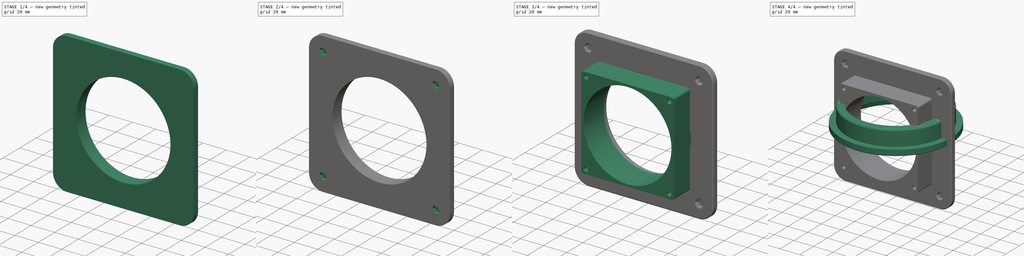
[diagram: build sequence overview — one tinted view per stage of 4, left to right]
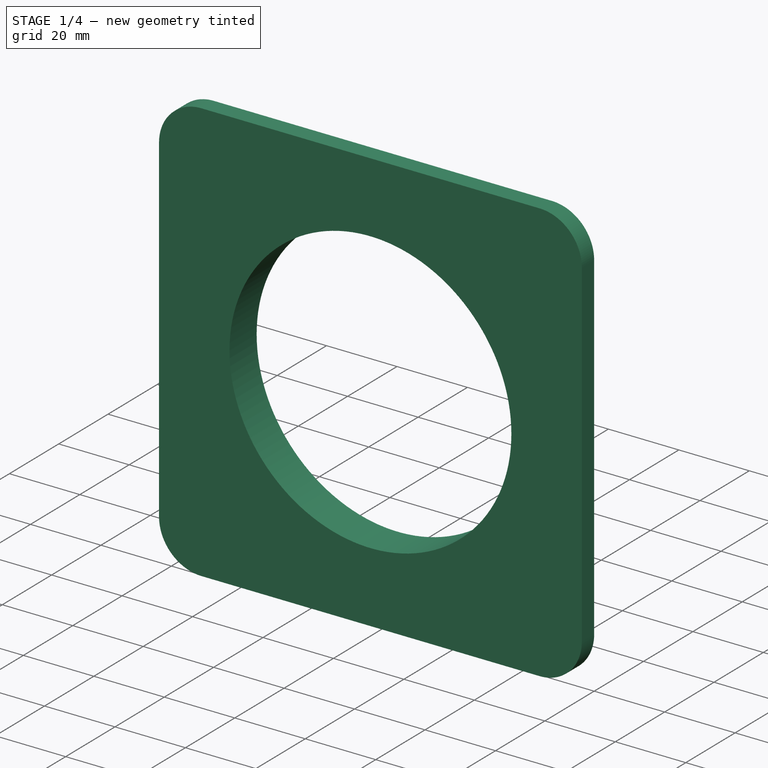
[diagram: stage 1 of 4 — iso view after this stage's code; geometry added in this stage tinted green]
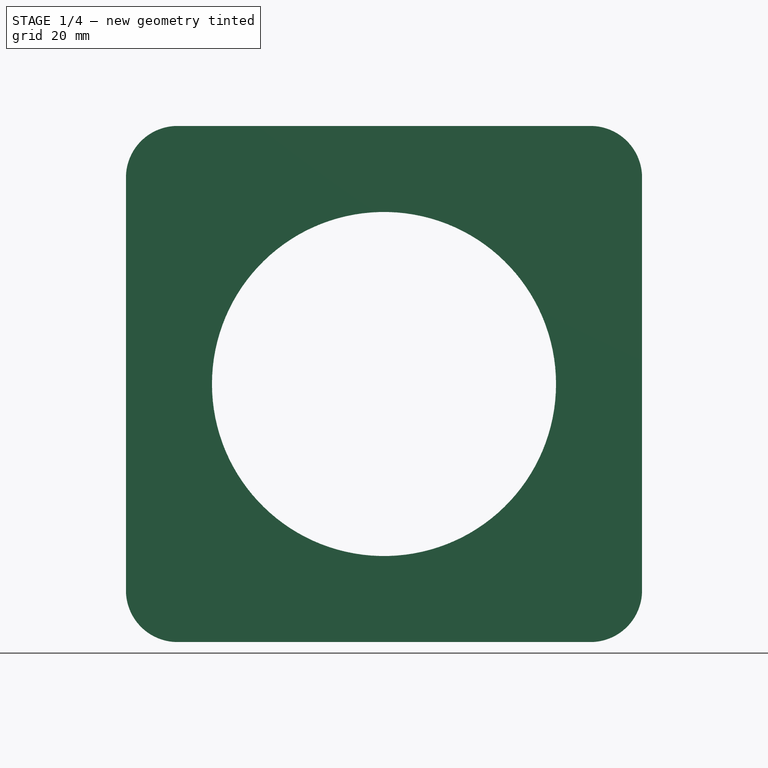
[diagram: stage 1 of 4 — front view after this stage's code; geometry added in this stage tinted green]
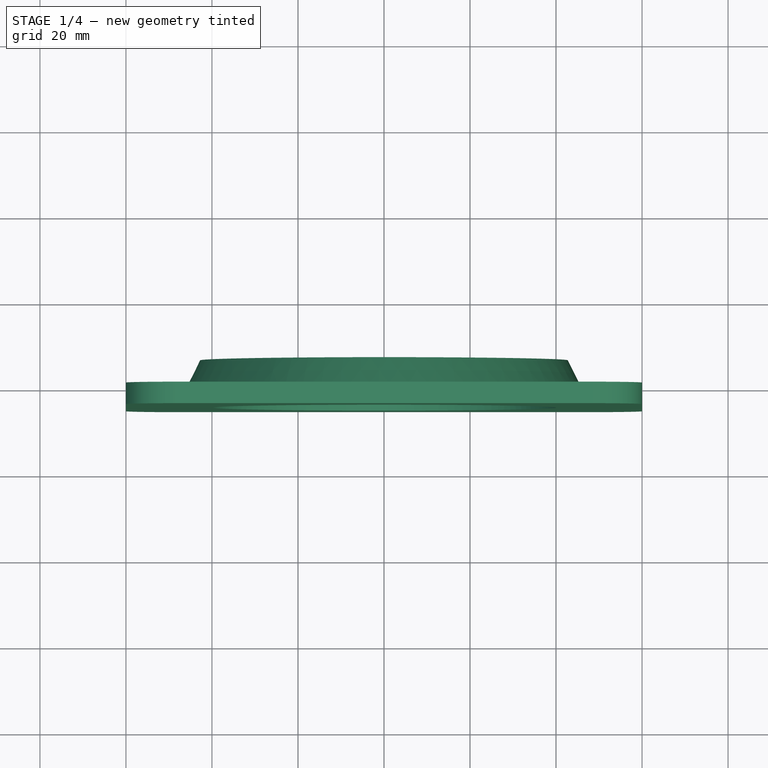
[diagram: stage 1 of 4 — top view after this stage's code; geometry added in this stage tinted green]
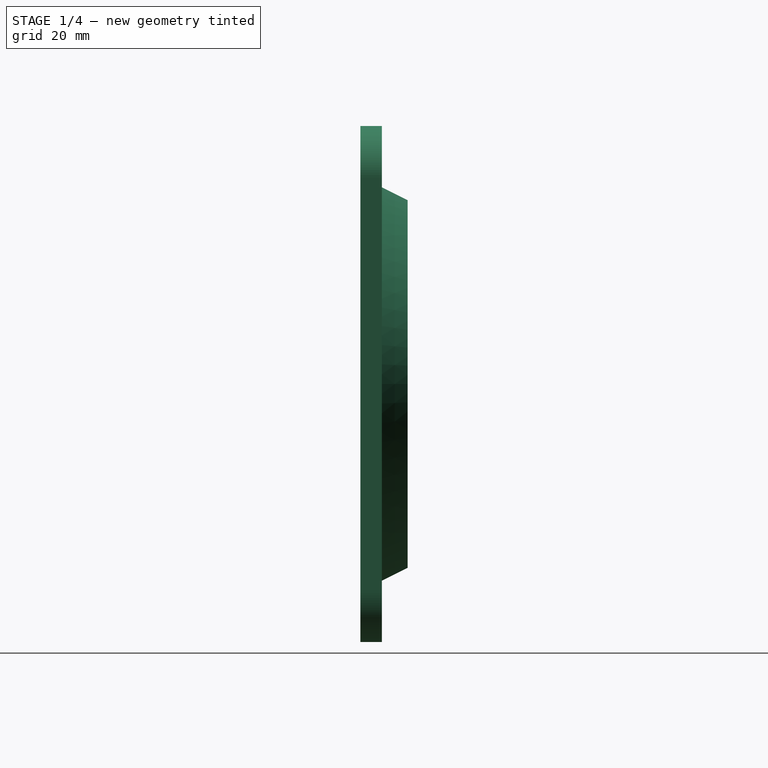
[diagram: stage 1 of 4 — right view after this stage's code; geometry added in this stage tinted green]
FCSTD DOCUMENT  (FreeCAD 1.0R39109 (Git))
Label: air-exhaust
License: All rights reserved
LicenseURL: http://en.wikipedia.org/wiki/All_rights_reserved
objects: Sketcher::SketchObject×10, PartDesign::Pocket×6, PartDesign::Body×3, PartDesign::Revolution×2, PartDesign::PolarPattern×2, PartDesign::Chamfer×2, PartDesign::Pad×2, App::Part×1
note: 63 computed .brp shape members not serialized (recipe doc carries the construction recipe); baked Part::Feature solids carry a one-line shape summary decoded from their .brp

FEATURE [PartDesign::Body] Body  label="air-connector-hose"
  AllowCompound = false
  Group = -> [Sketch,Revolution,Sketch001,Pocket,PolarPattern,Chamfer]
  Origin = -> Origin
  Placement = pos=(0,0,0) rot=(1,0,0;1.5708rad)
  Tip = -> Chamfer
FEATURE [Sketcher::SketchObject] Sketch492
  ArcFitTolerance = 1e-06
  AttachmentSupport = -> [XZ_Plane317]
  FullyConstrained = true
  MakeInternals = false
  MapMode = 5
  Placement = pos=(0,0,0) rot=(1,0,0;1.5708rad)
  sketch-geometry (13):
    g0: LineSegment StartX=-60 StartY=48 StartZ=0 EndX=-60 EndY=-48 EndZ=0
    g1: LineSegment StartX=-48 StartY=-60 StartZ=0 EndX=48 EndY=-60 EndZ=0
    g2: LineSegment StartX=60 StartY=-48 StartZ=0 EndX=60 EndY=48 EndZ=0
    g3: LineSegment StartX=48 StartY=60 StartZ=0 EndX=-48 EndY=60 EndZ=0
    g4: ArcOfCircle CenterX=-48 CenterY=48 CenterZ=0 NormalX=0 NormalY=0 NormalZ=1 AngleXU=0 Radius=12 StartAngle=1.5708 EndAngle=3.14159
    g5: GeomPoint [constr] X=-60 Y=60 Z=0
    g6: ArcOfCircle CenterX=48 CenterY=48 CenterZ=0 NormalX=0 NormalY=0 NormalZ=1 AngleXU=0 Radius=12 StartAngle=0 EndAngle=1.5708
    g7: GeomPoint [constr] X=60 Y=60 Z=0
    g8: ArcOfCircle CenterX=48 CenterY=-48 CenterZ=0 NormalX=0 NormalY=0 NormalZ=1 AngleXU=0 Radius=12 StartAngle=4.71239 EndAngle=6.28319
    g9: GeomPoint [constr] X=60 Y=-60 Z=0
    g10: ArcOfCircle CenterX=-48 CenterY=-48 CenterZ=0 NormalX=0 NormalY=0 NormalZ=1 AngleXU=0 Radius=12 StartAngle=3.14159 EndAngle=4.71239
    g11: GeomPoint [constr] X=-60 Y=-60 Z=0
    g12: Circle CenterX=0 CenterY=0 CenterZ=0 NormalX=0 NormalY=0 NormalZ=1 AngleXU=0 Radius=40
  constraints (29):
    c: Vertical(g0)
    c: Vertical(g2)
    c: Horizontal(g1)
    c: Horizontal(g3)
    c: PointOnObject(g5,g0)
    c: PointOnObject(g5,g3)
    c: Tangent(g0,g4) = -1.5708
    c: Tangent(g3,g4) = -1.5708
    c: PointOnObject(g7,g2)
    c: PointOnObject(g7,g3)
    c: Tangent(g2,g6) = -1.5708
    c: Tangent(g3,g6) = -1.5708
    c: PointOnObject(g9,g1)
    c: PointOnObject(g9,g2)
    c: Tangent(g1,g8) = -1.5708
    c: Tangent(g2,g8) = -1.5708
    c: PointOnObject(g11,g0)
    c: PointOnObject(g11,g1)
    c: Tangent(g0,g10) = -1.5708
    c: Tangent(g1,g10) = -1.5708
    c: Symmetric(g4,g8,g-1)
    c: Equal(g2,g3)
    c: Equal(g4,g6)
    c: Equal(g6,g8)
    c: Equal(g8,g10)
    c: DistanceX(g6) = 48
    c: Coincident(g12,g-1)
    c: Diameter(g12) = 80
    c: Radius(g6) = 12
FEATURE [PartDesign::Pad] Pad111
  Direction = (0,-1,2e-16)
  Length = 5
  Length2 = 0
  Placement = pos=(0,0,0) rot=(1,0,0;1.5708rad)
  Profile = -> Sketch492
  ReferenceAxis = -> Sketch492 [N_Axis]
  Suppressed = false
  Type = 0
FEATURE [PartDesign::Body] Body167  label="exhaust-fan"
  AllowCompound = false
  Group = -> [Sketch498,Pad113]
  Origin = -> Origin319
  Placement = pos=(0,5,0) rot=(0,0,1;3.14159rad)
  Tip = -> Pad113
FEATURE [Sketcher::SketchObject] Sketch503
  ArcFitTolerance = 1e-06
  AttachmentSupport = -> [XY_Plane317]
  FullyConstrained = true
  MakeInternals = false
  MapMode = 5
  sketch-geometry (4):
    g0: LineSegment StartX=40 StartY=0 StartZ=0 EndX=40 EndY=6 EndZ=0
    g1: LineSegment StartX=42.75 StartY=6 StartZ=0 EndX=45.75 EndY=0 EndZ=0
    g2: LineSegment StartX=45.75 StartY=0 StartZ=0 EndX=40 EndY=0 EndZ=0
    g3: LineSegment StartX=40 StartY=6 StartZ=0 EndX=42.75 EndY=6 EndZ=0
  constraints (12):
    c: Vertical(g0)
    c: Coincident(g1,g2)
    c: Coincident(g2,g0)
    c: Horizontal(g2)
    c: DistanceX(g0) = 40
    c: DistanceY(g1,g1) = 6
    c: DistanceX(g1,g1) = 3
    c: DistanceY(g0,g0) = 6
    c: PointOnObject(g0,g-1)
    c: DistanceX(g0,g1) = 2.75
    c: Coincident(g3,g0)
    c: Coincident(g3,g1)
FEATURE [Sketcher::SketchObject] Sketch504
  ArcFitTolerance = 1e-06
  AttachmentSupport = -> [XZ_Plane317]
  FullyConstrained = true
  MakeInternals = false
  MapMode = 5
  Placement = pos=(0,0,0) rot=(1,0,0;1.5708rad)
  sketch-geometry (6):
    g0: Circle CenterX=-48 CenterY=48 CenterZ=0 NormalX=0 NormalY=0 NormalZ=1 AngleXU=0 Radius=1.75
    g1: Circle CenterX=48 CenterY=48 CenterZ=0 NormalX=0 NormalY=0 NormalZ=1 AngleXU=0 Radius=1.75
    g2: Circle CenterX=48 CenterY=-48 CenterZ=0 NormalX=0 NormalY=0 NormalZ=1 AngleXU=0 Radius=1.75
    g3: Circle CenterX=-48 CenterY=-48 CenterZ=0 NormalX=0 NormalY=0 NormalZ=1 AngleXU=0 Radius=1.75
    g4: LineSegment [constr] StartX=-48 StartY=48 StartZ=0 EndX=48 EndY=48 EndZ=0
    g5: LineSegment [constr] StartX=-48 StartY=48 StartZ=0 EndX=-48 EndY=-48 EndZ=0
  constraints (15):
    c: Equal(g0,g1)
    c: Equal(g0,g2)
    c: Equal(g0,g3)
    c: Horizontal(g0,g1)
    c: Vertical(g1,g2)
    c: Horizontal(g2,g3)
    c: Vertical(g3,g0)
    c: Symmetric(g0,g2,g-1)
    c: Coincident(g4,g0)
    c: Coincident(g4,g1)
    c: Coincident(g5,g0)
    c: Coincident(g5,g3)
    c: Equal(g5,g4)
    c: DistanceX(g4,g4) = 96
    c: Diameter(g0) = 3.5
FEATURE [Sketcher::SketchObject] Sketch505
  ArcFitTolerance = 1e-06
  AttachmentOffset = pos=(0,0,2) rot=(0,0,1;0rad)
  AttachmentSupport = -> [XZ_Plane317]
  FullyConstrained = true
  MakeInternals = false
  MapMode = 5
  Placement = pos=(0,-2,4e-16) rot=(1,0,0;1.5708rad)
  sketch-geometry (30):
    g0: LineSegment StartX=-46.4123 StartY=45.25 StartZ=0 EndX=-44.8246 EndY=48 EndZ=0
    g1: LineSegment StartX=-44.8246 StartY=48 StartZ=0 EndX=-46.4123 EndY=50.75 EndZ=0
    g2: LineSegment StartX=-46.4123 StartY=50.75 StartZ=0 EndX=-49.5877 EndY=50.75 EndZ=0
    g3: LineSegment StartX=-49.5877 StartY=50.75 StartZ=0 EndX=-51.1754 EndY=48 EndZ=0
    g4: LineSegment StartX=-51.1754 StartY=48 StartZ=0 EndX=-49.5877 EndY=45.25 EndZ=0
    g5: LineSegment StartX=-49.5877 StartY=45.25 StartZ=0 EndX=-46.4123 EndY=45.25 EndZ=0
    g6: Circle [constr] CenterX=-48 CenterY=48 CenterZ=0 NormalX=0 NormalY=0 NormalZ=1 AngleXU=0 Radius=3.17543
    g7: LineSegment StartX=49.5877 StartY=45.25 StartZ=0 EndX=51.1754 EndY=48 EndZ=0
    g8: LineSegment StartX=51.1754 StartY=48 StartZ=0 EndX=49.5877 EndY=50.75 EndZ=0
    g9: LineSegment StartX=49.5877 StartY=50.75 StartZ=0 EndX=46.4123 EndY=50.75 EndZ=0
    g10: LineSegment StartX=46.4123 StartY=50.75 StartZ=0 EndX=44.8246 EndY=48 EndZ=0
    g11: LineSegment StartX=44.8246 StartY=48 StartZ=0 EndX=46.4123 EndY=45.25 EndZ=0
    g12: LineSegment StartX=46.4123 StartY=45.25 StartZ=0 EndX=49.5877 EndY=45.25 EndZ=0
    g13: Circle [constr] CenterX=48 CenterY=48 CenterZ=0 NormalX=0 NormalY=0 NormalZ=1 AngleXU=0 Radius=3.17543
    g14: LineSegment StartX=49.5877 StartY=-50.75 StartZ=0 EndX=51.1754 EndY=-48 EndZ=0
    g15: LineSegment StartX=51.1754 StartY=-48 StartZ=0 EndX=49.5877 EndY=-45.25 EndZ=0
    g16: LineSegment StartX=49.5877 StartY=-45.25 StartZ=0 EndX=46.4123 EndY=-45.25 EndZ=0
    g17: LineSegment StartX=46.4123 StartY=-45.25 StartZ=0 EndX=44.8246 EndY=-48 EndZ=0
    g18: LineSegment StartX=44.8246 StartY=-48 StartZ=0 EndX=46.4123 EndY=-50.75 EndZ=0
    g19: LineSegment StartX=46.4123 StartY=-50.75 StartZ=0 EndX=49.5877 EndY=-50.75 EndZ=0
    g20: Circle [constr] CenterX=48 CenterY=-48 CenterZ=0 NormalX=0 NormalY=0 NormalZ=1 AngleXU=0 Radius=3.17543
    g21: LineSegment StartX=-44.8246 StartY=-48 StartZ=0 EndX=-46.4123 EndY=-45.25 EndZ=0
    g22: LineSegment StartX=-46.4123 StartY=-45.25 StartZ=0 EndX=-49.5877 EndY=-45.25 EndZ=0
    g23: LineSegment StartX=-49.5877 StartY=-45.25 StartZ=0 EndX=-51.1754 EndY=-48 EndZ=0
    g24: LineSegment StartX=-51.1754 StartY=-48 StartZ=0 EndX=-49.5877 EndY=-50.75 EndZ=0
    g25: LineSegment StartX=-49.5877 StartY=-50.75 StartZ=0 EndX=-46.4123 EndY=-50.75 EndZ=0
    g26: LineSegment StartX=-46.4123 StartY=-50.75 StartZ=0 EndX=-44.8246 EndY=-48 EndZ=0
    g27: Circle [constr] CenterX=-48 CenterY=-48 CenterZ=0 NormalX=0 NormalY=0 NormalZ=1 AngleXU=0 Radius=3.17543
    g28: LineSegment [constr] StartX=-48 StartY=48 StartZ=0 EndX=48 EndY=48 EndZ=0
    g29: LineSegment [constr] StartX=-48 StartY=-48 StartZ=0 EndX=-48 EndY=48 EndZ=0
  constraints (71):
    c: Coincident(g0,g1)
    c: Coincident(g1,g2)
    c: Coincident(g2,g3)
    c: Coincident(g3,g4)
    c: Coincident(g4,g5)
    c: Coincident(g5,g0)
    c: Equal(g0, g1-g5) x5
    c: PointOnObject(g0,g6)
    c: PointOnObject(g1,g6)
    c: PointOnObject(g2,g6)
    c: PointOnObject(g3,g6)
    c: PointOnObject(g4,g6)
    c: PointOnObject(g5,g6)
    c: Coincident(g7,g8)
    c: Coincident(g8,g9)
    c: Coincident(g9,g10)
    c: Coincident(g10,g11)
    c: Coincident(g11,g12)
    c: Coincident(g12,g7)
    c: Equal(g7, g8-g12) x5
    c: PointOnObject(g7,g13)
    c: PointOnObject(g8,g13)
    c: PointOnObject(g9,g13)
    c: PointOnObject(g10,g13)
    c: PointOnObject(g11,g13)
    c: PointOnObject(g12,g13)
    c: Coincident(g14,g15)
    c: Coincident(g15,g16)
    c: Coincident(g16,g17)
    c: Coincident(g17,g18)
    c: Coincident(g18,g19)
    c: Coincident(g19,g14)
    c: Equal(g14, g15-g19) x5
    c: PointOnObject(g14,g20)
    c: PointOnObject(g15,g20)
    c: PointOnObject(g16,g20)
    c: PointOnObject(g17,g20)
    c: PointOnObject(g18,g20)
    c: PointOnObject(g19,g20)
    c: Coincident(g21,g22)
    c: Coincident(g22,g23)
    c: Coincident(g23,g24)
    c: Coincident(g24,g25)
    c: Coincident(g25,g26)
    c: Coincident(g26,g21)
    c: Equal(g21, g22-g26) x5
    c: PointOnObject(g21,g27)
    c: PointOnObject(g22,g27)
    c: PointOnObject(g23,g27)
    c: PointOnObject(g24,g27)
    c: PointOnObject(g25,g27)
    c: PointOnObject(g26,g27)
    c: Equal(g6,g13)
    c: Equal(g13,g20)
    c: Equal(g20,g27)
    c: Symmetric(g27,g13,g-1)
    c: Horizontal(g27,g20)
    c: Vertical(g20,g13)
    c: Horizontal(g13,g6)
    c: Vertical(g6,g27)
    c: Horizontal(g22)
    c: Horizontal(g16)
    c: Horizontal(g9)
    c: Horizontal(g2)
    c: Coincident(g28,g6)
    c: Coincident(g28,g13)
    c: Coincident(g29,g27)
    c: Coincident(g29,g6)
    c: Equal(g29,g28)
    c: DistanceX(g28,g28) = 96
    c: DistanceY(g0,g1) = 5.5
FEATURE [Sketcher::SketchObject] Sketch502
  ArcFitTolerance = 1e-06
  AttachmentSupport = -> [XZ_Plane317]
  FullyConstrained = true
  MakeInternals = false
  MapMode = 5
  Placement = pos=(0,0,0) rot=(1,0,0;1.5708rad)
  sketch-geometry (3):
    g0: GeomPoint X=46 Y=0 Z=0
    g1: GeomPoint X=56 Y=0 Z=0
    g2: Circle CenterX=51 CenterY=0 CenterZ=0 NormalX=0 NormalY=0 NormalZ=1 AngleXU=0 Radius=3
  constraints (6):
    c: PointOnObject(g0,g-1)
    c: DistanceX(g0) = 46
    c: PointOnObject(g1,g-1)
    c: DistanceX(g1) = 56
    c: Symmetric(g1,g0,g2)
    c: Diameter(g2) = 6
FEATURE [PartDesign::Pocket] Pocket352
  BaseFeature = -> Pad111
  Direction = (0,1,-2e-16)
  Length = 3.5
  Length2 = 5
  Placement = pos=(0,0,0) rot=(1,0,0;1.5708rad)
  Profile = -> Sketch502
  ReferenceAxis = -> Sketch502 [N_Axis]
  Reversed = true
  Suppressed = false
  Type = 0
FEATURE [PartDesign::PolarPattern] PolarPattern007
  Angle = 360
  Axis = -> Y_Axis318
  BaseFeature = -> Pocket352
  Mode = 0
  Occurrences = 6
  Offset = 120
  Originals = -> [Pocket352]
  Placement = pos=(0,0,0) rot=(1,0,0;1.5708rad)
  Suppressed = false
  TransformMode = 0
FEATURE [PartDesign::Revolution] Revolution001
  Angle = 360
  Angle2 = 60
  Axis = (0,1,0)
  Base = (0,0,0)
  BaseFeature = -> PolarPattern007
  Placement = pos=(0,0,0) rot=(1,0,0;1.5708rad)
  Profile = -> Sketch503
  ReferenceAxis = -> Sketch503 [V_Axis]
  Refine = true
  Reversed = true
  Suppressed = false
  Type = 0
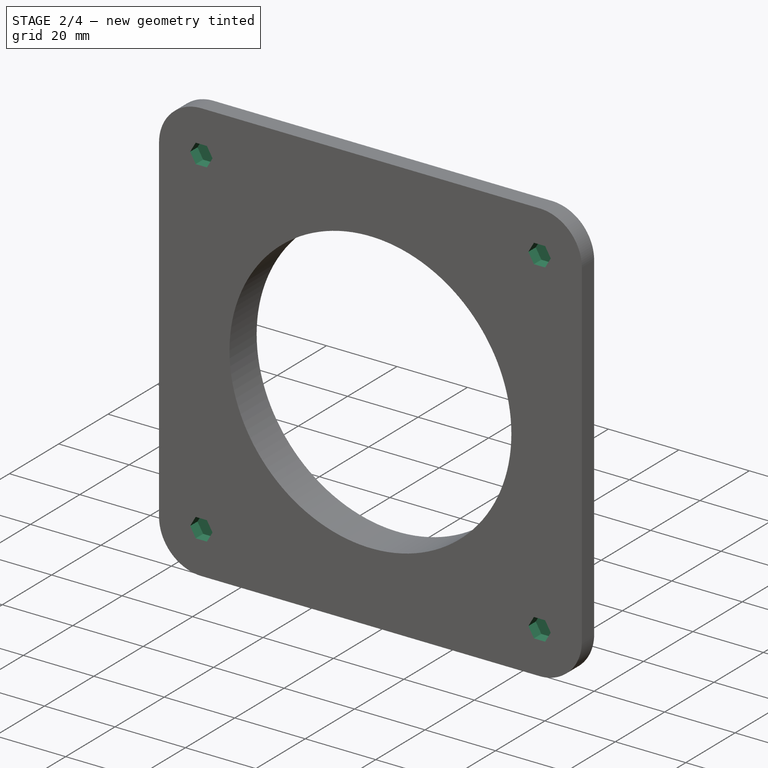
[diagram: stage 2 of 4 — iso view after this stage's code; geometry added in this stage tinted green]
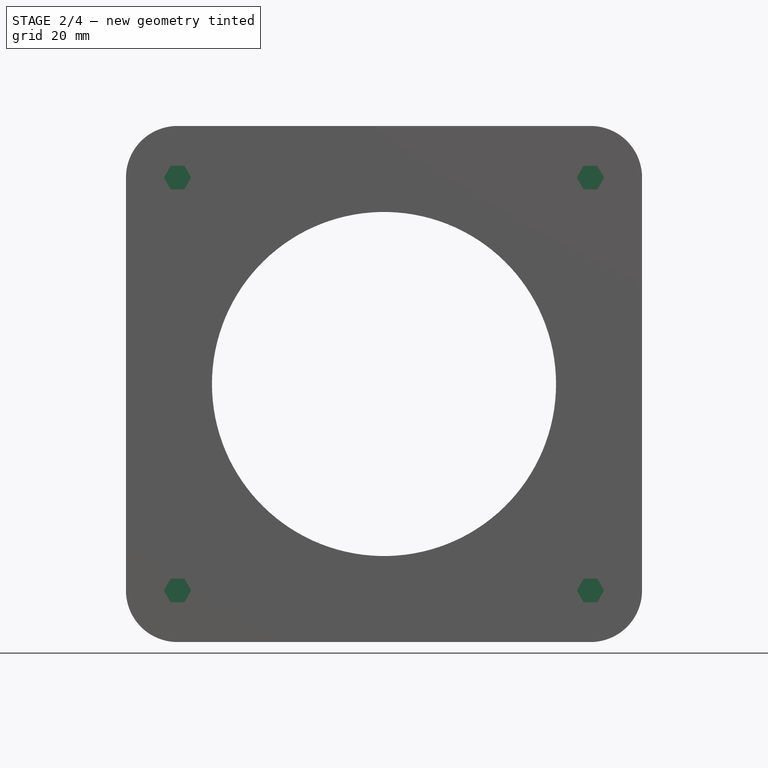
[diagram: stage 2 of 4 — front view after this stage's code; geometry added in this stage tinted green]
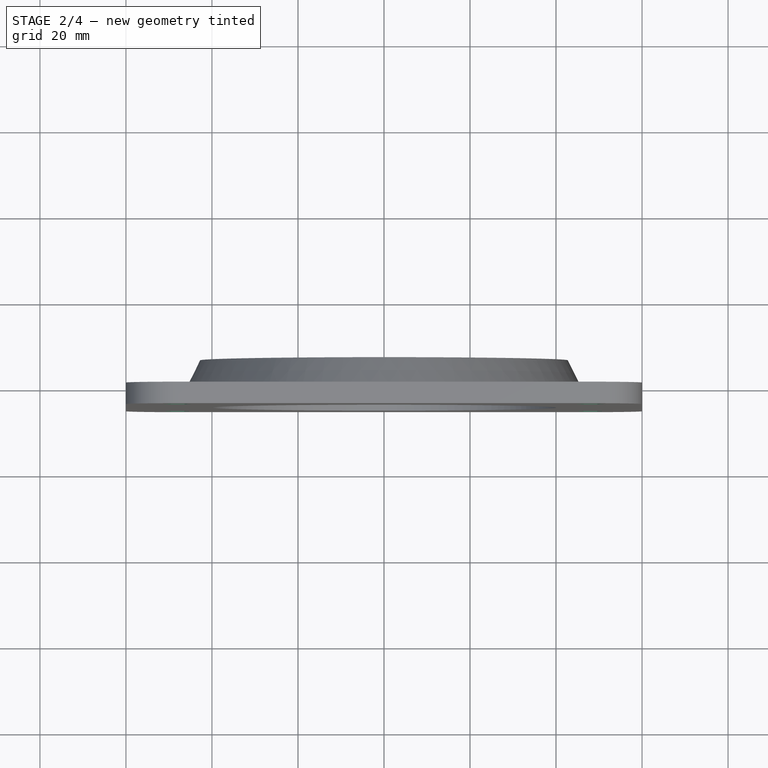
[diagram: stage 2 of 4 — top view after this stage's code; geometry added in this stage tinted green]
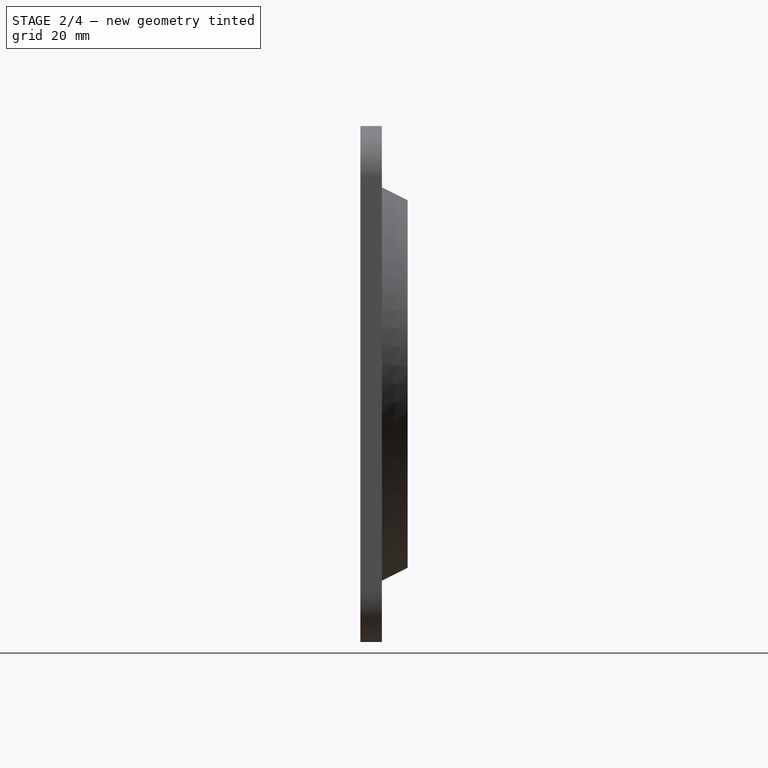
[diagram: stage 2 of 4 — right view after this stage's code; geometry added in this stage tinted green]
FEATURE [PartDesign::Pocket] Pocket353
  BaseFeature = -> Revolution001
  Direction = (0,1,-2e-16)
  Length = 1.7
  Length2 = 5
  Placement = pos=(0,0,0) rot=(1,0,0;1.5708rad)
  Profile = -> Sketch504
  ReferenceAxis = -> Sketch504 [N_Axis]
  Refine = true
  Reversed = true
  Suppressed = false
  Type = 0
FEATURE [PartDesign::Pocket] Pocket354
  BaseFeature = -> Pocket353
  Direction = (0,1,-2e-16)
  Length = 5
  Length2 = 5
  Placement = pos=(0,0,0) rot=(1,0,0;1.5708rad)
  Profile = -> Sketch505
  ReferenceAxis = -> Sketch505 [N_Axis]
  Refine = true
  Reversed = true
  Suppressed = false
  Type = 1
FEATURE [Sketcher::SketchObject] Sketch506
  ArcFitTolerance = 1e-06
  AttachmentSupport = -> [XZ_Plane317]
  FullyConstrained = true
  MakeInternals = false
  MapMode = 5
  Placement = pos=(0,0,0) rot=(1,0,0;1.5708rad)
  sketch-geometry (6):
    g0: Circle CenterX=-36 CenterY=36 CenterZ=0 NormalX=0 NormalY=0 NormalZ=1 AngleXU=0 Radius=1.75
    g1: Circle CenterX=36 CenterY=36 CenterZ=0 NormalX=0 NormalY=0 NormalZ=1 AngleXU=0 Radius=1.75
    g2: Circle CenterX=36 CenterY=-36 CenterZ=0 NormalX=0 NormalY=0 NormalZ=1 AngleXU=0 Radius=1.75
    g3: Circle CenterX=-36 CenterY=-36 CenterZ=0 NormalX=0 NormalY=0 NormalZ=1 AngleXU=0 Radius=1.75
    g4: LineSegment [constr] StartX=-36 StartY=36 StartZ=0 EndX=36 EndY=36 EndZ=0
    g5: LineSegment [constr] StartX=-36 StartY=36 StartZ=0 EndX=-36 EndY=-36 EndZ=0
  constraints (15):
    c: Equal(g0,g1)
    c: Equal(g0,g2)
    c: Equal(g0,g3)
    c: Horizontal(g0,g1)
    c: Vertical(g1,g2)
    c: Horizontal(g2,g3)
    c: Vertical(g3,g0)
    c: Symmetric(g0,g2,g-1)
    c: Coincident(g4,g0)
    c: Coincident(g4,g1)
    c: Coincident(g5,g0)
    c: Coincident(g5,g3)
    c: Equal(g5,g4)
    c: DistanceX(g4,g4) = 72
    c: Diameter(g0) = 3.5
FEATURE [Sketcher::SketchObject] Sketch507
  ArcFitTolerance = 1e-06
  AttachmentOffset = pos=(0,0,3) rot=(0,0,1;0rad)
  AttachmentSupport = -> [XZ_Plane317]
  FullyConstrained = true
  MakeInternals = false
  MapMode = 5
  Placement = pos=(0,-3,7e-16) rot=(1,0,0;1.5708rad)
  sketch-geometry (30):
    g0: LineSegment StartX=-34.4123 StartY=33.25 StartZ=0 EndX=-32.8246 EndY=36 EndZ=0
    g1: LineSegment StartX=-32.8246 StartY=36 StartZ=0 EndX=-34.4123 EndY=38.75 EndZ=0
    g2: LineSegment StartX=-34.4123 StartY=38.75 StartZ=0 EndX=-37.5877 EndY=38.75 EndZ=0
    g3: LineSegment StartX=-37.5877 StartY=38.75 StartZ=0 EndX=-39.1754 EndY=36 EndZ=0
    g4: LineSegment StartX=-39.1754 StartY=36 StartZ=0 EndX=-37.5877 EndY=33.25 EndZ=0
    g5: LineSegment StartX=-37.5877 StartY=33.25 StartZ=0 EndX=-34.4123 EndY=33.25 EndZ=0
    g6: Circle [constr] CenterX=-36 CenterY=36 CenterZ=0 NormalX=0 NormalY=0 NormalZ=1 AngleXU=0 Radius=3.17543
    g7: LineSegment StartX=37.5877 StartY=33.25 StartZ=0 EndX=39.1754 EndY=36 EndZ=0
    g8: LineSegment StartX=39.1754 StartY=36 StartZ=0 EndX=37.5877 EndY=38.75 EndZ=0
    g9: LineSegment StartX=37.5877 StartY=38.75 StartZ=0 EndX=34.4123 EndY=38.75 EndZ=0
    g10: LineSegment StartX=34.4123 StartY=38.75 StartZ=0 EndX=32.8246 EndY=36 EndZ=0
    g11: LineSegment StartX=32.8246 StartY=36 StartZ=0 EndX=34.4123 EndY=33.25 EndZ=0
    g12: LineSegment StartX=34.4123 StartY=33.25 StartZ=0 EndX=37.5877 EndY=33.25 EndZ=0
    g13: Circle [constr] CenterX=36 CenterY=36 CenterZ=0 NormalX=0 NormalY=0 NormalZ=1 AngleXU=0 Radius=3.17543
    g14: LineSegment StartX=37.5877 StartY=-38.75 StartZ=0 EndX=39.1754 EndY=-36 EndZ=0
    g15: LineSegment StartX=39.1754 StartY=-36 StartZ=0 EndX=37.5877 EndY=-33.25 EndZ=0
    g16: LineSegment StartX=37.5877 StartY=-33.25 StartZ=0 EndX=34.4123 EndY=-33.25 EndZ=0
    g17: LineSegment StartX=34.4123 StartY=-33.25 StartZ=0 EndX=32.8246 EndY=-36 EndZ=0
    g18: LineSegment StartX=32.8246 StartY=-36 StartZ=0 EndX=34.4123 EndY=-38.75 EndZ=0
    g19: LineSegment StartX=34.4123 StartY=-38.75 StartZ=0 EndX=37.5877 EndY=-38.75 EndZ=0
    g20: Circle [constr] CenterX=36 CenterY=-36 CenterZ=0 NormalX=0 NormalY=0 NormalZ=1 AngleXU=0 Radius=3.17543
    g21: LineSegment StartX=-32.8246 StartY=-36 StartZ=0 EndX=-34.4123 EndY=-33.25 EndZ=0
    g22: LineSegment StartX=-34.4123 StartY=-33.25 StartZ=0 EndX=-37.5877 EndY=-33.25 EndZ=0
    g23: LineSegment StartX=-37.5877 StartY=-33.25 StartZ=0 EndX=-39.1754 EndY=-36 EndZ=0
    g24: LineSegment StartX=-39.1754 StartY=-36 StartZ=0 EndX=-37.5877 EndY=-38.75 EndZ=0
    g25: LineSegment StartX=-37.5877 StartY=-38.75 StartZ=0 EndX=-34.4123 EndY=-38.75 EndZ=0
    g26: LineSegment StartX=-34.4123 StartY=-38.75 StartZ=0 EndX=-32.8246 EndY=-36 EndZ=0
    g27: Circle [constr] CenterX=-36 CenterY=-36 CenterZ=0 NormalX=0 NormalY=0 NormalZ=1 AngleXU=0 Radius=3.17543
    g28: LineSegment [constr] StartX=-36 StartY=36 StartZ=0 EndX=36 EndY=36 EndZ=0
    g29: LineSegment [constr] StartX=-36 StartY=-36 StartZ=0 EndX=-36 EndY=36 EndZ=0
  constraints (71):
    c: Coincident(g0,g1)
    c: Coincident(g1,g2)
    c: Coincident(g2,g3)
    c: Coincident(g3,g4)
    c: Coincident(g4,g5)
    c: Coincident(g5,g0)
    c: Equal(g0, g1-g5) x5
    c: PointOnObject(g0,g6)
    c: PointOnObject(g1,g6)
    c: PointOnObject(g2,g6)
    c: PointOnObject(g3,g6)
    c: PointOnObject(g4,g6)
    c: PointOnObject(g5,g6)
    c: Coincident(g7,g8)
    c: Coincident(g8,g9)
    c: Coincident(g9,g10)
    c: Coincident(g10,g11)
    c: Coincident(g11,g12)
    c: Coincident(g12,g7)
    c: Equal(g7, g8-g12) x5
    c: PointOnObject(g7,g13)
    c: PointOnObject(g8,g13)
    c: PointOnObject(g9,g13)
    c: PointOnObject(g10,g13)
    c: PointOnObject(g11,g13)
    c: PointOnObject(g12,g13)
    c: Coincident(g14,g15)
    c: Coincident(g15,g16)
    c: Coincident(g16,g17)
    c: Coincident(g17,g18)
    c: Coincident(g18,g19)
    c: Coincident(g19,g14)
    c: Equal(g14, g15-g19) x5
    c: PointOnObject(g14,g20)
    c: PointOnObject(g15,g20)
    c: PointOnObject(g16,g20)
    c: PointOnObject(g17,g20)
    c: PointOnObject(g18,g20)
    c: PointOnObject(g19,g20)
    c: Coincident(g21,g22)
    c: Coincident(g22,g23)
    c: Coincident(g23,g24)
    c: Coincident(g24,g25)
    c: Coincident(g25,g26)
    c: Coincident(g26,g21)
    c: Equal(g21, g22-g26) x5
    c: PointOnObject(g21,g27)
    c: PointOnObject(g22,g27)
    c: PointOnObject(g23,g27)
    c: PointOnObject(g24,g27)
    c: PointOnObject(g25,g27)
    c: PointOnObject(g26,g27)
    c: Equal(g6,g13)
    c: Equal(g13,g20)
    c: Equal(g20,g27)
    c: Symmetric(g27,g13,g-1)
    c: Horizontal(g27,g20)
    c: Vertical(g20,g13)
    c: Horizontal(g13,g6)
    c: Vertical(g6,g27)
    c: Horizontal(g22)
    c: Horizontal(g16)
    c: Horizontal(g9)
    c: Horizontal(g2)
    c: Coincident(g28,g6)
    c: Coincident(g28,g13)
    c: Coincident(g29,g27)
    c: Coincident(g29,g6)
    c: Equal(g29,g28)
    c: DistanceX(g28,g28) = 72
    c: DistanceY(g0,g1) = 5.5
FEATURE [PartDesign::Pocket] Pocket355
  BaseFeature = -> Pocket354
  Direction = (0,1,-2e-16)
  Length = 5
  Length2 = 5
  Placement = pos=(0,0,0) rot=(1,0,0;1.5708rad)
  Profile = -> Sketch507
  ReferenceAxis = -> Sketch507 [N_Axis]
  Refine = true
  Suppressed = false
  Type = 1
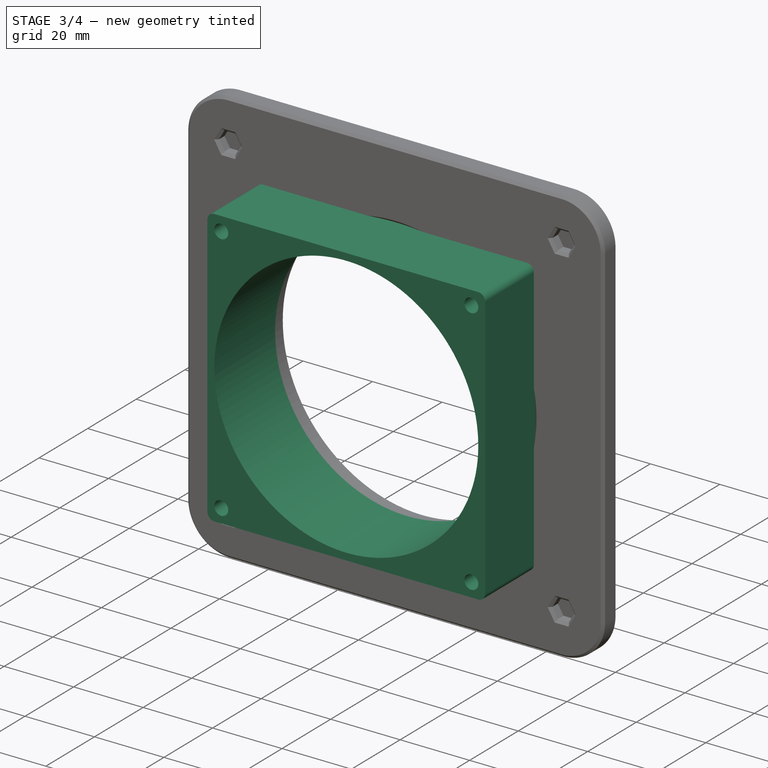
[diagram: stage 3 of 4 — iso view after this stage's code; geometry added in this stage tinted green]
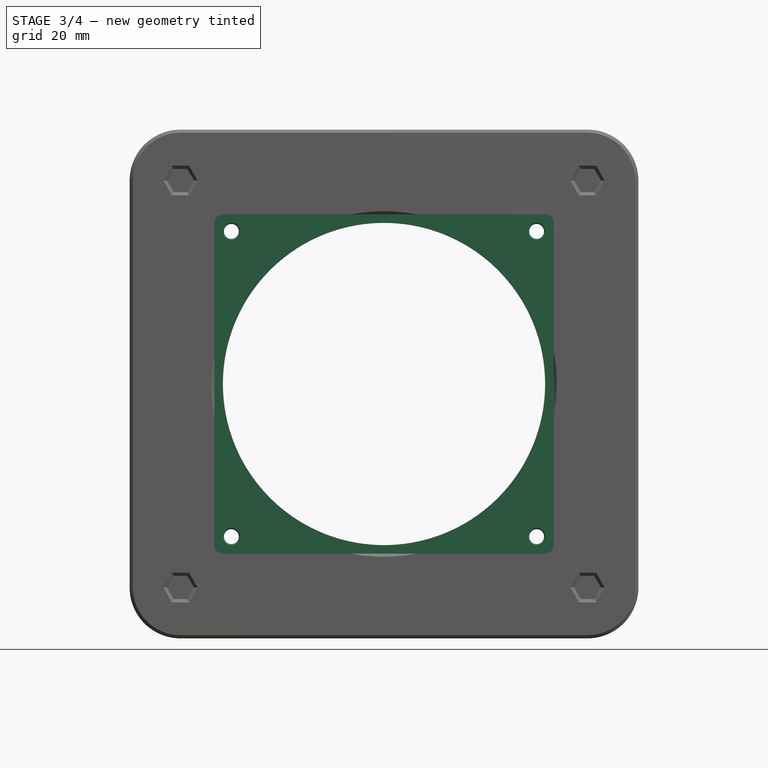
[diagram: stage 3 of 4 — front view after this stage's code; geometry added in this stage tinted green]
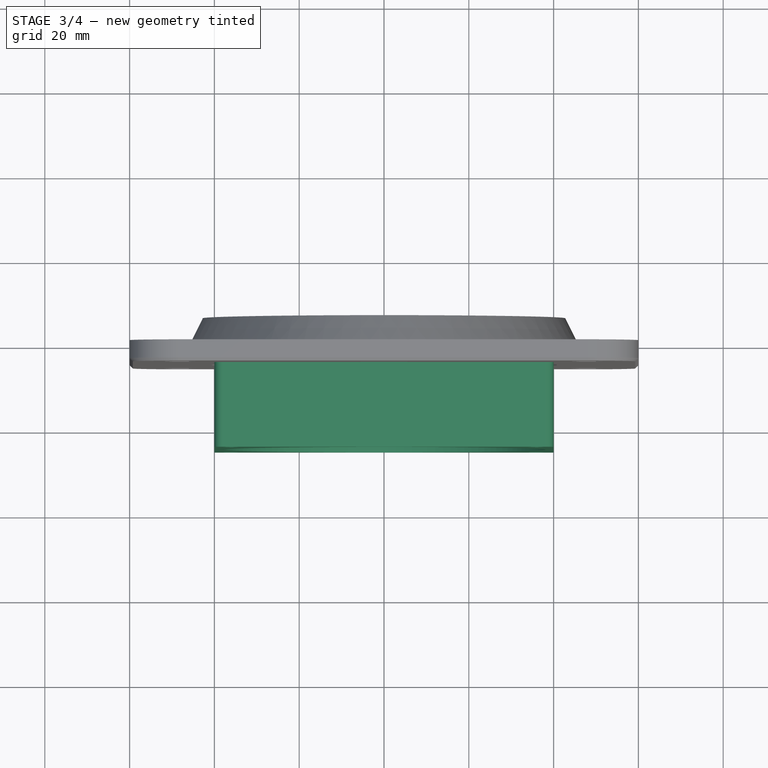
[diagram: stage 3 of 4 — top view after this stage's code; geometry added in this stage tinted green]
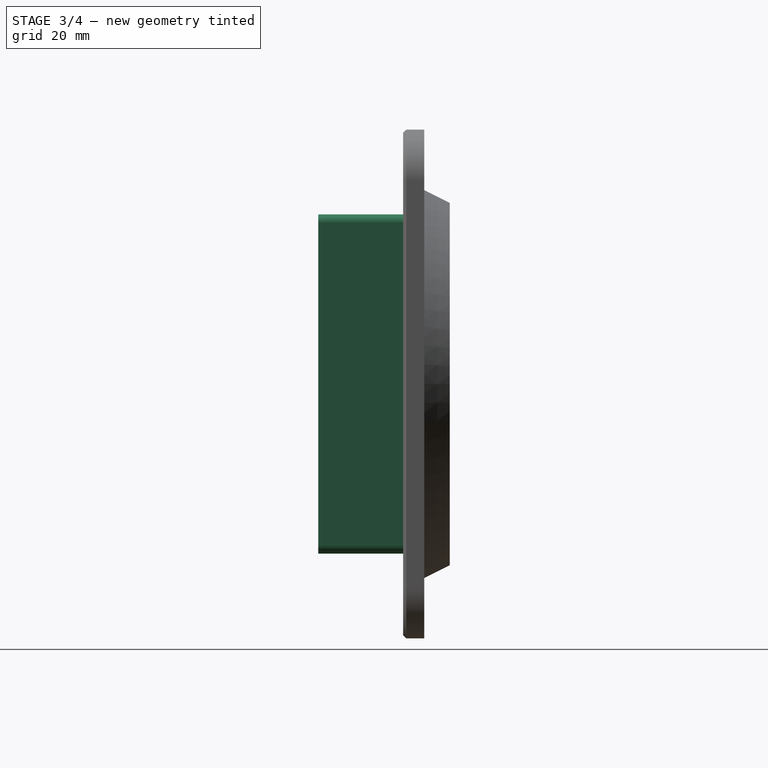
[diagram: stage 3 of 4 — right view after this stage's code; geometry added in this stage tinted green]
FEATURE [Sketcher::SketchObject] Sketch498
  ArcFitTolerance = 1e-06
  AttachmentSupport = -> [XZ_Plane318]
  FullyConstrained = true
  MakeInternals = false
  MapMode = 5
  Placement = pos=(0,0,0) rot=(1,0,0;1.5708rad)
  sketch-geometry (17):
    g0: LineSegment StartX=-40 StartY=38 StartZ=0 EndX=-40 EndY=-38 EndZ=0
    g1: LineSegment StartX=-38 StartY=-40 StartZ=0 EndX=38 EndY=-40 EndZ=0
    g2: LineSegment StartX=40 StartY=-38 StartZ=0 EndX=40 EndY=38 EndZ=0
    g3: LineSegment StartX=38 StartY=40 StartZ=0 EndX=-38 EndY=40 EndZ=0
    g4: ArcOfCircle CenterX=38 CenterY=38 CenterZ=0 NormalX=0 NormalY=0 NormalZ=1 AngleXU=0 Radius=2 StartAngle=3e-16 EndAngle=1.5708
    g5: GeomPoint [constr] X=40 Y=40 Z=0
    g6: ArcOfCircle CenterX=-38 CenterY=38 CenterZ=0 NormalX=0 NormalY=0 NormalZ=1 AngleXU=0 Radius=2 StartAngle=1.5708 EndAngle=3.14159
    g7: GeomPoint [constr] X=-40 Y=40 Z=0
    g8: ArcOfCircle CenterX=-38 CenterY=-38 CenterZ=0 NormalX=0 NormalY=0 NormalZ=1 AngleXU=0 Radius=2 StartAngle=3.14159 EndAngle=4.71239
    g9: GeomPoint [constr] X=-40 Y=-40 Z=0
    g10: ArcOfCircle CenterX=38 CenterY=-38 CenterZ=0 NormalX=0 NormalY=0 NormalZ=1 AngleXU=0 Radius=2 StartAngle=4.71239 EndAngle=6.28319
    g11: GeomPoint [constr] X=40 Y=-40 Z=0
    g12: Circle CenterX=-36 CenterY=36 CenterZ=0 NormalX=0 NormalY=0 NormalZ=1 AngleXU=0 Radius=2
    g13: Circle CenterX=36 CenterY=36 CenterZ=0 NormalX=0 NormalY=0 NormalZ=1 AngleXU=0 Radius=2
    g14: Circle CenterX=36 CenterY=-36 CenterZ=0 NormalX=0 NormalY=0 NormalZ=1 AngleXU=0 Radius=2
    g15: Circle CenterX=-36 CenterY=-36 CenterZ=0 NormalX=0 NormalY=0 NormalZ=1 AngleXU=0 Radius=2
    g16: Circle CenterX=0 CenterY=0 CenterZ=0 NormalX=0 NormalY=0 NormalZ=1 AngleXU=0 Radius=38
  constraints (40):
    c: Vertical(g0)
    c: Vertical(g2)
    c: Horizontal(g1)
    c: Horizontal(g3)
    c: Symmetric(g5,g9,g-1)
    c: PointOnObject(g5,g2)
    c: PointOnObject(g5,g3)
    c: Tangent(g2,g4) = -1.5708
    c: Tangent(g3,g4) = -1.5708
    c: PointOnObject(g7,g0)
    c: PointOnObject(g7,g3)
    c: Tangent(g0,g6) = -1.5708
    c: Tangent(g3,g6) = -1.5708
    c: PointOnObject(g9,g0)
    c: PointOnObject(g9,g1)
    c: Tangent(g0,g8) = -1.5708
    c: Tangent(g1,g8) = -1.5708
    c: PointOnObject(g11,g1)
    c: PointOnObject(g11,g2)
    c: Tangent(g1,g10) = -1.5708
    c: Tangent(g2,g10) = -1.5708
    c: Equal(g10,g4)
    c: Equal(g4,g6)
    c: Equal(g6,g8)
    c: Equal(g2,g3)
    c: DistanceX(g5) = 40
    c: Equal(g14,g13)
    c: Equal(g14,g12)
    c: Equal(g14,g15)
    c: Diameter(g14) = 4
    c: Horizontal(g15,g14)
    c: Horizontal(g13,g12)
    c: Vertical(g12,g15)
    c: Vertical(g14,g13)
    c: Symmetric(g13,g15,g-1)
    c: DistanceX(g13,g5) = 4
    c: DistanceY(g13,g5) = 4
    c: Coincident(g16,g-1)
    c: Diameter(g16) = 76
    c: Radius(g4) = 2
FEATURE [PartDesign::Pad] Pad113
  Direction = (0,-1,2e-16)
  Length = 25
  Length2 = 10
  Placement = pos=(0,0,0) rot=(1,0,0;1.5708rad)
  Profile = -> Sketch498
  ReferenceAxis = -> Sketch498 [N_Axis]
  Suppressed = false
  Type = 0
FEATURE [PartDesign::Pocket] Pocket356
  BaseFeature = -> Pocket355
  Direction = (0,1,-2e-16)
  Length = 5
  Length2 = 5
  Midplane = true
  Placement = pos=(0,0,0) rot=(1,0,0;1.5708rad)
  Profile = -> Sketch506
  ReferenceAxis = -> Sketch506 [N_Axis]
  Refine = true
  Suppressed = false
  Type = 1
FEATURE [PartDesign::Chamfer] Chamfer001
  Angle = 45
  Base = -> Pocket356 [Face4]
  BaseFeature = -> Pocket356
  ChamferType = 0
  FlipDirection = false
  Placement = pos=(0,0,0) rot=(1,0,0;1.5708rad)
  Refine = true
  Size = 0.75
  Size2 = 1
  SupportTransform = false
  Suppressed = false
  UseAllEdges = false
FEATURE [PartDesign::Body] Body166  label="air-connector-chamber"
  AllowCompound = false
  Group = -> [Sketch492,Pad111,Sketch502,Pocket352,PolarPattern007,Sketch503,Revolution001,Sketch504,Sketch505,Pocket353,Pocket354,Sketch506,Sketch507,Pocket355,Pocket356,Chamfer001]
  Origin = -> Origin318
  Placement = pos=(0,0,0) rot=(1,0,0;3.14159rad)
  Tip = -> Chamfer001
FEATURE [App::Part] Part  label="air-exhaust"
  Group = -> [Body,Body166,Body167]
  Origin = -> Origin321
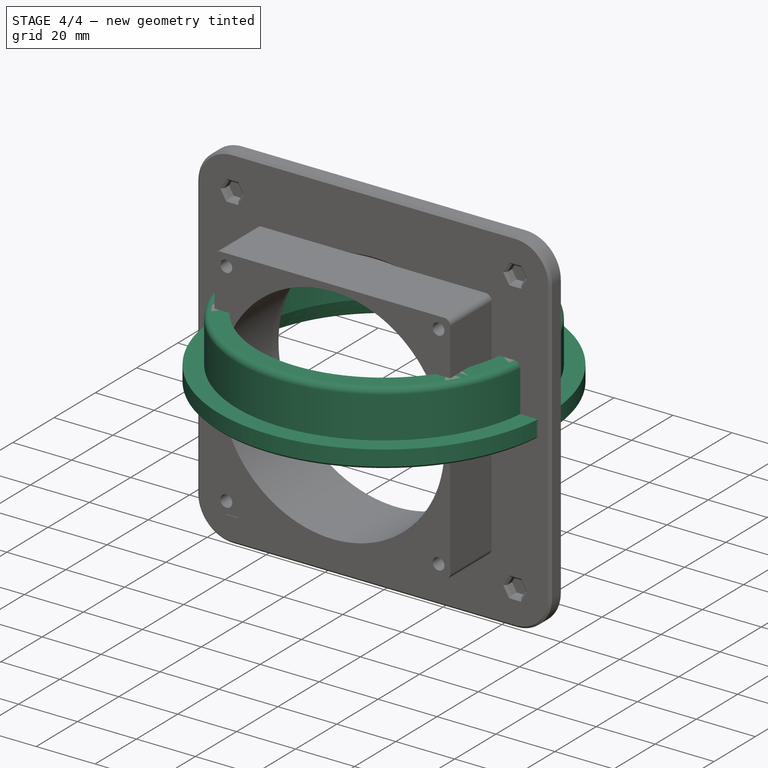
[diagram: stage 4 of 4 — iso view after this stage's code; geometry added in this stage tinted green]
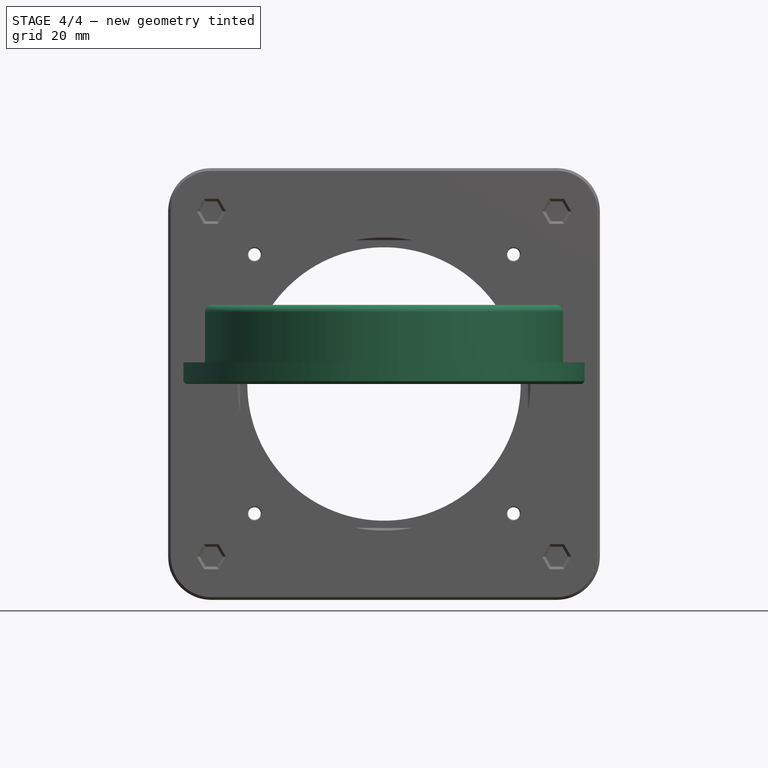
[diagram: stage 4 of 4 — front view after this stage's code; geometry added in this stage tinted green]
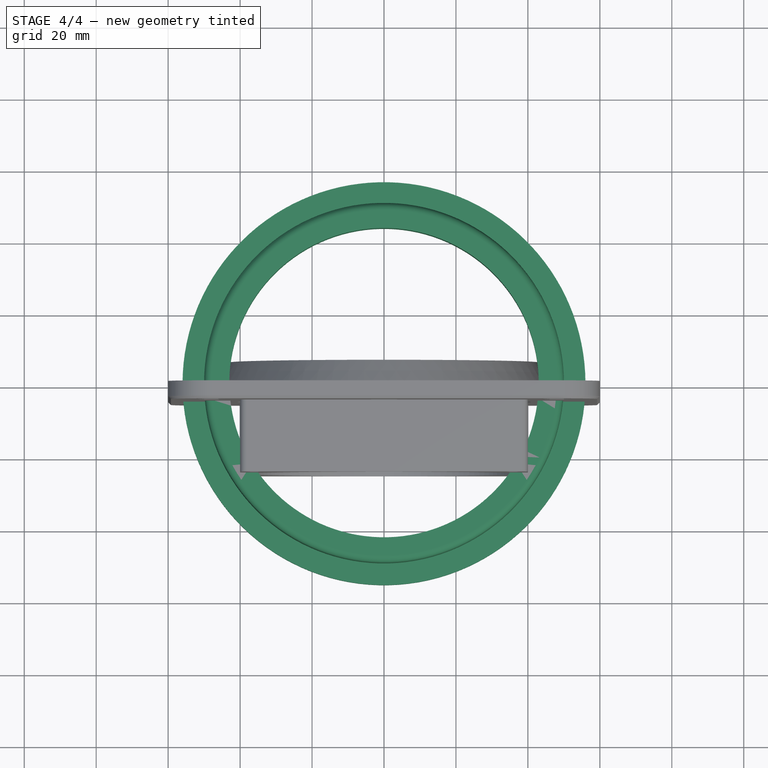
[diagram: stage 4 of 4 — top view after this stage's code; geometry added in this stage tinted green]
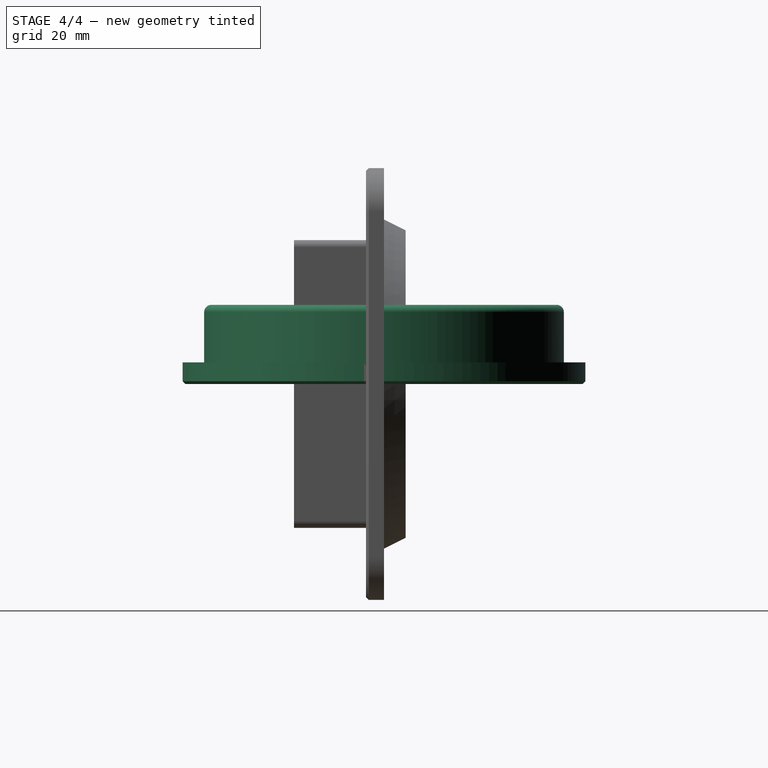
[diagram: stage 4 of 4 — right view after this stage's code; geometry added in this stage tinted green]
FEATURE [Sketcher::SketchObject] Sketch
  ArcFitTolerance = 1e-06
  AttachmentSupport = -> [XZ_Plane]
  FullyConstrained = true
  MakeInternals = false
  MapMode = 5
  Placement = pos=(0,0,0) rot=(1,0,0;1.5708rad)
  sketch-geometry (9):
    g0: LineSegment StartX=56 StartY=0 StartZ=0 EndX=56 EndY=6 EndZ=0
    g1: LineSegment StartX=56 StartY=6 StartZ=0 EndX=50 EndY=6 EndZ=0
    g2: LineSegment StartX=50 StartY=6 StartZ=0 EndX=50 EndY=20 EndZ=0
    g3: LineSegment StartX=48 StartY=22 StartZ=0 EndX=43 EndY=22 EndZ=0
    g4: LineSegment StartX=46 StartY=0 StartZ=0 EndX=56 EndY=0 EndZ=0
    g5: ArcOfCircle CenterX=48 CenterY=20 CenterZ=0 NormalX=0 NormalY=0 NormalZ=1 AngleXU=0 Radius=2 StartAngle=4e-16 EndAngle=1.5708
    g6: GeomPoint [constr] X=50 Y=22 Z=0
    g7: LineSegment StartX=46 StartY=0 StartZ=0 EndX=43 EndY=6 EndZ=0
    g8: LineSegment StartX=43 StartY=6 StartZ=0 EndX=43 EndY=22 EndZ=0
  constraints (25):
    c: PointOnObject(g0,g-1)
    c: Vertical(g0)
    c: Coincident(g0,g1)
    c: Horizontal(g1)
    c: Coincident(g1,g2)
    c: Vertical(g2)
    c: Horizontal(g3)
    c: PointOnObject(g4,g-1)
    c: Coincident(g4,g0)
    c: DistanceX(g0) = 56
    c: DistanceX(g6) = 50
    c: PointOnObject(g6,g2)
    c: PointOnObject(g6,g3)
    c: Tangent(g2,g5) = -1.5708
    c: Tangent(g3,g5) = -1.5708
    c: Radius(g5) = 2
    c: DistanceY(g0,g0) = 6
    c: DistanceY(g1,g6) = 16
    c: Coincident(g4,g7)
    c: Coincident(g7,g8)
    c: Coincident(g8,g3)
    c: Vertical(g8)
    c: DistanceX(g7) = 43
    c: DistanceY(g7,g7) = 6
    c: DistanceX(g7,g7) = 3
FEATURE [PartDesign::Revolution] Revolution
  Angle = 360
  Angle2 = 60
  Axis = (0,2e-16,1)
  Base = (0,0,0)
  Placement = pos=(0,0,0) rot=(1,0,0;1.5708rad)
  Profile = -> Sketch
  ReferenceAxis = -> Sketch [V_Axis]
  Reversed = true
  Suppressed = false
  Type = 0
FEATURE [Sketcher::SketchObject] Sketch001
  ArcFitTolerance = 1e-06
  AttachmentSupport = -> [XY_Plane]
  FullyConstrained = true
  MakeInternals = false
  MapMode = 5
  sketch-geometry (3):
    g0: GeomPoint X=46 Y=0 Z=0
    g1: GeomPoint X=56 Y=0 Z=0
    g2: Circle CenterX=51 CenterY=0 CenterZ=0 NormalX=0 NormalY=0 NormalZ=1 AngleXU=0 Radius=3
  constraints (6):
    c: PointOnObject(g0,g-1)
    c: DistanceX(g0) = 46
    c: PointOnObject(g1,g-1)
    c: DistanceX(g1) = 56
    c: Symmetric(g1,g0,g2)
    c: Diameter(g2) = 6
FEATURE [PartDesign::Pocket] Pocket
  BaseFeature = -> Revolution
  Direction = (0,0,-1)
  Length = 4
  Length2 = 5
  Placement = pos=(0,0,0) rot=(1,0,0;1.5708rad)
  Profile = -> Sketch001
  ReferenceAxis = -> Sketch001 [N_Axis]
  Reversed = true
  Suppressed = false
  Type = 0
FEATURE [PartDesign::PolarPattern] PolarPattern
  Angle = 360
  Axis = -> Z_Axis
  BaseFeature = -> Pocket
  Mode = 0
  Occurrences = 6
  Offset = 120
  Originals = -> [Pocket]
  Placement = pos=(0,0,0) rot=(1,0,0;1.5708rad)
  Suppressed = false
  TransformMode = 0
FEATURE [PartDesign::Chamfer] Chamfer
  Angle = 45
  Base = -> PolarPattern [Face1]
  BaseFeature = -> PolarPattern
  ChamferType = 0
  FlipDirection = false
  Placement = pos=(0,0,0) rot=(1,0,0;1.5708rad)
  Size = 0.75
  Size2 = 1
  SupportTransform = false
  Suppressed = false
  UseAllEdges = false
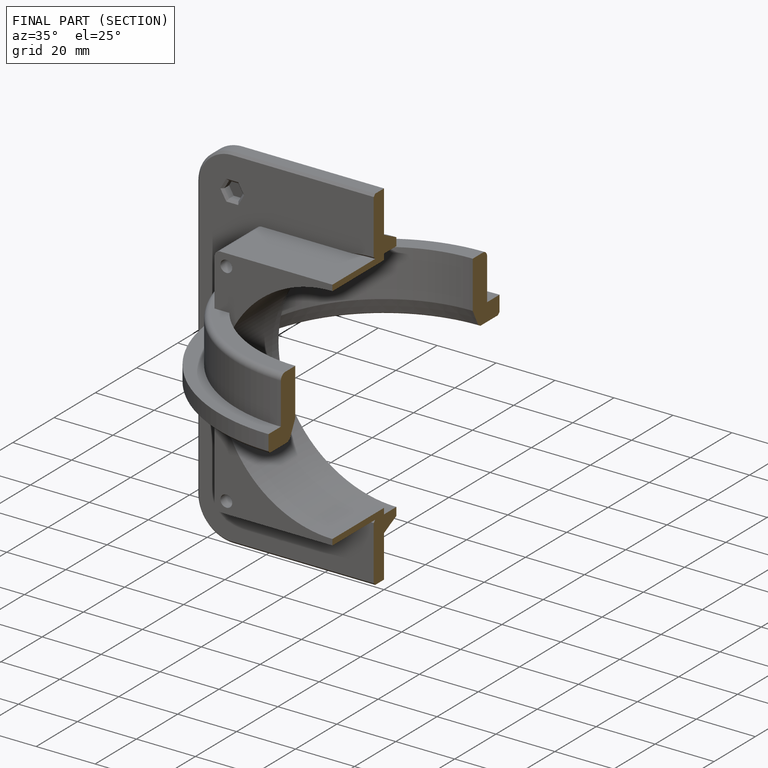
[diagram: finished part — half-section view (interior)]
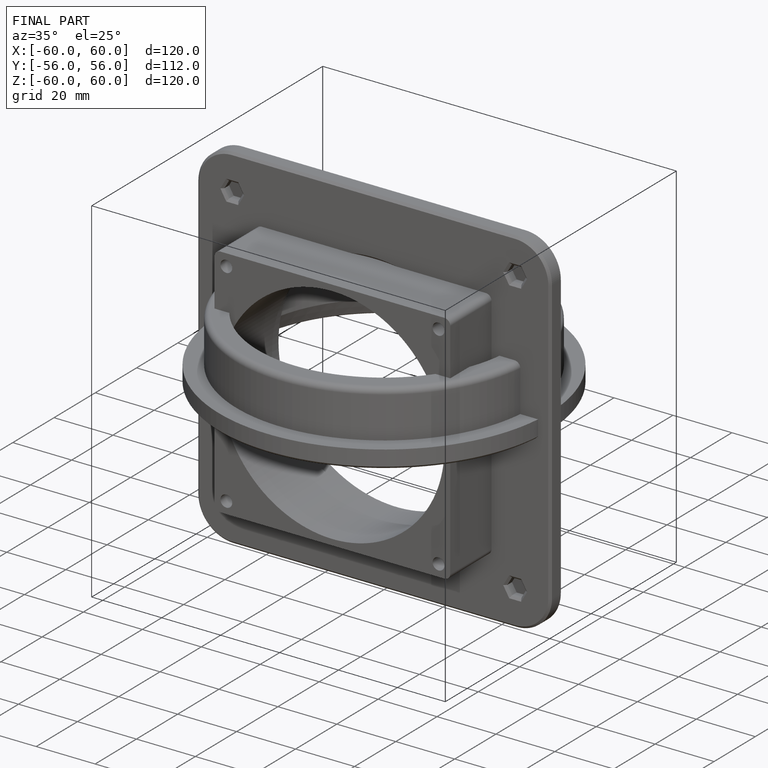
[diagram: finished part — iso view with bounding-box wireframe]
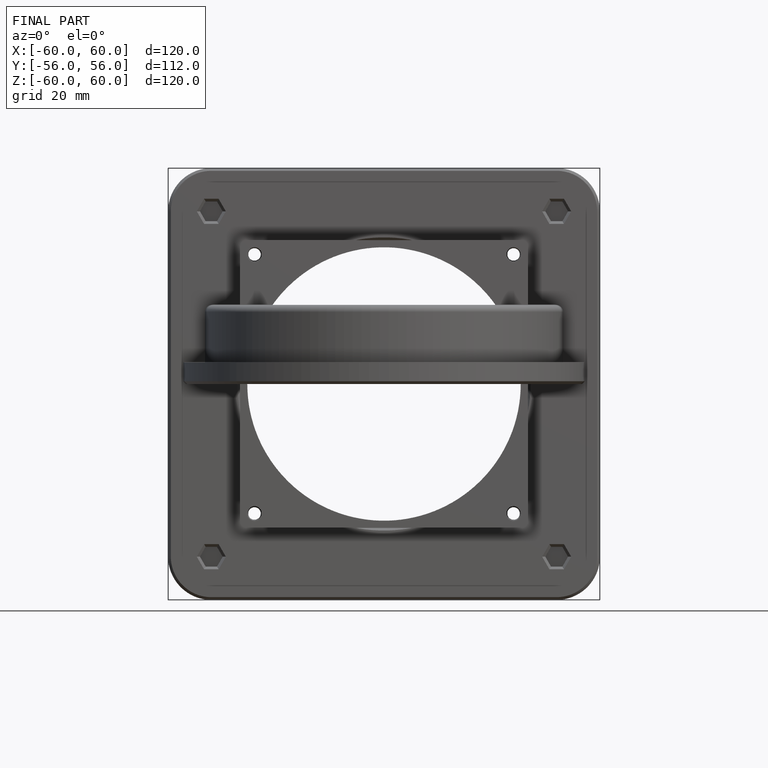
[diagram: finished part — front view with bounding-box wireframe]
